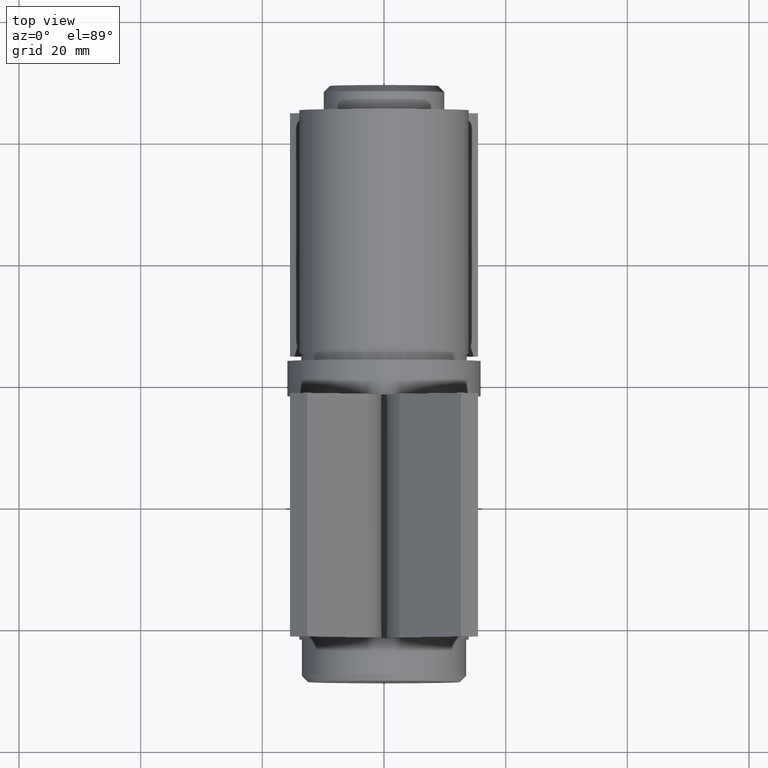
[diagram: clean part render]
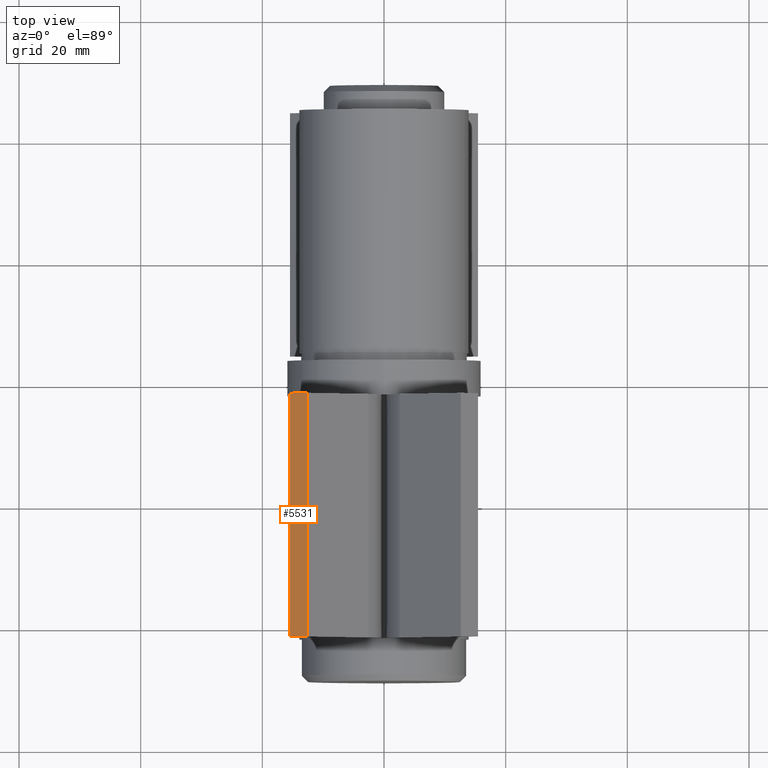
[diagram: same view with one face highlighted and labeled with its STEP entity id]
A machine part, top view. The second image highlights one B-rep face of the part: STEP entity #5531.
In plain terms, the highlighted planar face has unit normal (0.7071, 0, -0.7071).
Its self-contained STEP definition (entity closure, byte-faithful):
#12 = CARTESIAN_POINT ( 'NONE',  ( 15.44365081389616989, 19.99999999999998934, -28.17157287525409259 ) ) ;
#155 = VERTEX_POINT ( 'NONE', #602 ) ;
#399 = VECTOR ( 'NONE', #4097, 1000.000000000000000 ) ;
#602 = CARTESIAN_POINT ( 'NONE',  ( 15.44365081389616989, -20.00000000000000355, -28.17157287525409259 ) ) ;
#849 = VERTEX_POINT ( 'NONE', #4172 ) ;
#868 = LINE ( 'NONE', #12, #3432 ) ;
#1000 = PLANE ( 'NONE',  #8938 ) ;
#1666 = ORIENTED_EDGE ( 'NONE', *, *, #9838, .T. ) ;
#2901 = CARTESIAN_POINT ( 'NONE',  ( 15.44365081389616989, 19.99999999999998934, -28.17157287525409259 ) ) ;
#3183 = ORIENTED_EDGE ( 'NONE', *, *, #5794, .T. ) ;
#3432 = VECTOR ( 'NONE', #4850, 1000.000000000000000 ) ;
#3580 = DIRECTION ( 'NONE',  ( -0.7071067811865464625, 0.000000000000000000, -0.7071067811865486830 ) ) ;
#3979 = DIRECTION ( 'NONE',  ( -0.7071067811865486830, 0.000000000000000000, 0.7071067811865464625 ) ) ;
#4097 = DIRECTION ( 'NONE',  ( -0.000000000000000000, -1.000000000000000000, 0.000000000000000000 ) ) ;
#4172 = CARTESIAN_POINT ( 'NONE',  ( 12.61522368914998005, -20.00000000000000355, -31.00000000000029132 ) ) ;
#4502 = CARTESIAN_POINT ( 'NONE',  ( 15.44365081389616989, 19.99999999999998934, -28.17157287525409259 ) ) ;
#4802 = FACE_OUTER_BOUND ( 'NONE', #11210, .T. ) ;
#4850 = DIRECTION ( 'NONE',  ( -0.000000000000000000, -1.000000000000000000, 0.000000000000000000 ) ) ;
#4856 = CARTESIAN_POINT ( 'NONE',  ( 15.44365081389616989, 19.99999999999998934, -28.17157287525409259 ) ) ;
#5531 = ADVANCED_FACE ( 'NONE', ( #4802 ), #1000, .F. ) ;
#5794 = EDGE_CURVE ( 'NONE', #155, #849, #8550, .T. ) ;
#5913 = DIRECTION ( 'NONE',  ( -0.7071067811865464625, 0.000000000000000000, -0.7071067811865486830 ) ) ;
#5990 = VERTEX_POINT ( 'NONE', #4856 ) ;
#6532 = VERTEX_POINT ( 'NONE', #11022 ) ;
#6535 = ORIENTED_EDGE ( 'NONE', *, *, #10079, .F. ) ;
#6852 = LINE ( 'NONE', #4502, #10969 ) ;
#7026 = CARTESIAN_POINT ( 'NONE',  ( 12.61522368914998005, 19.99999999999998934, -31.00000000000029132 ) ) ;
#7748 = DIRECTION ( 'NONE',  ( 0.7071067811865464625, 0.000000000000000000, 0.7071067811865486830 ) ) ;
#8007 = ORIENTED_EDGE ( 'NONE', *, *, #9308, .F. ) ;
#8550 = LINE ( 'NONE', #8732, #8697 ) ;
#8697 = VECTOR ( 'NONE', #5913, 1000.000000000000000 ) ;
#8732 = CARTESIAN_POINT ( 'NONE',  ( 15.44365081389616989, -20.00000000000000355, -28.17157287525409259 ) ) ;
#8938 = AXIS2_PLACEMENT_3D ( 'NONE', #2901, #3979, #7748 ) ;
#9308 = EDGE_CURVE ( 'NONE', #5990, #6532, #6852, .T. ) ;
#9838 = EDGE_CURVE ( 'NONE', #5990, #155, #868, .T. ) ;
#9885 = LINE ( 'NONE', #7026, #399 ) ;
#10079 = EDGE_CURVE ( 'NONE', #6532, #849, #9885, .T. ) ;
#10969 = VECTOR ( 'NONE', #3580, 1000.000000000000000 ) ;
#11022 = CARTESIAN_POINT ( 'NONE',  ( 12.61522368914998005, 19.99999999999998934, -31.00000000000029132 ) ) ;
#11210 = EDGE_LOOP ( 'NONE', ( #3183, #6535, #8007, #1666 ) ) ;